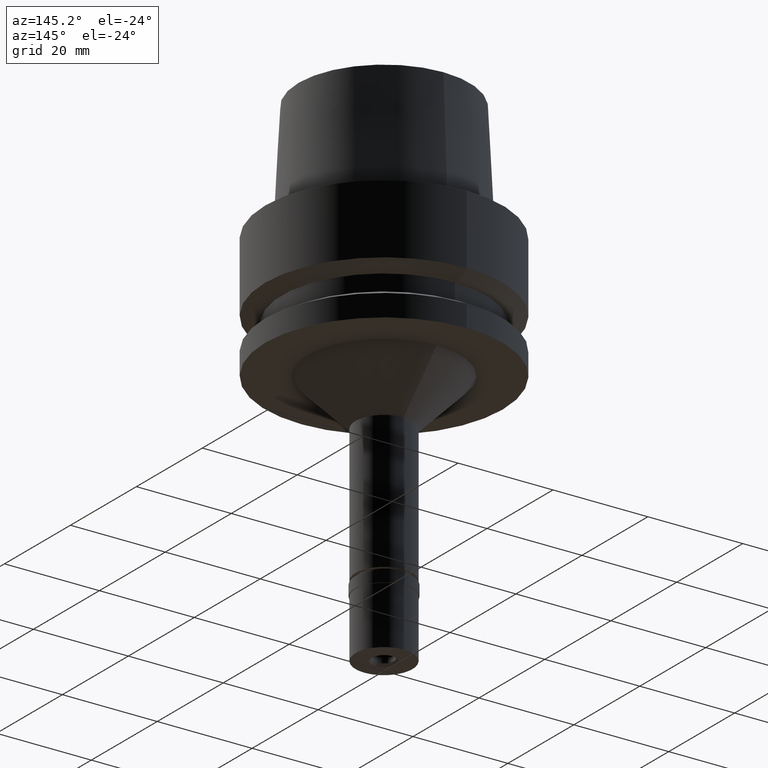
[diagram: clean part render]
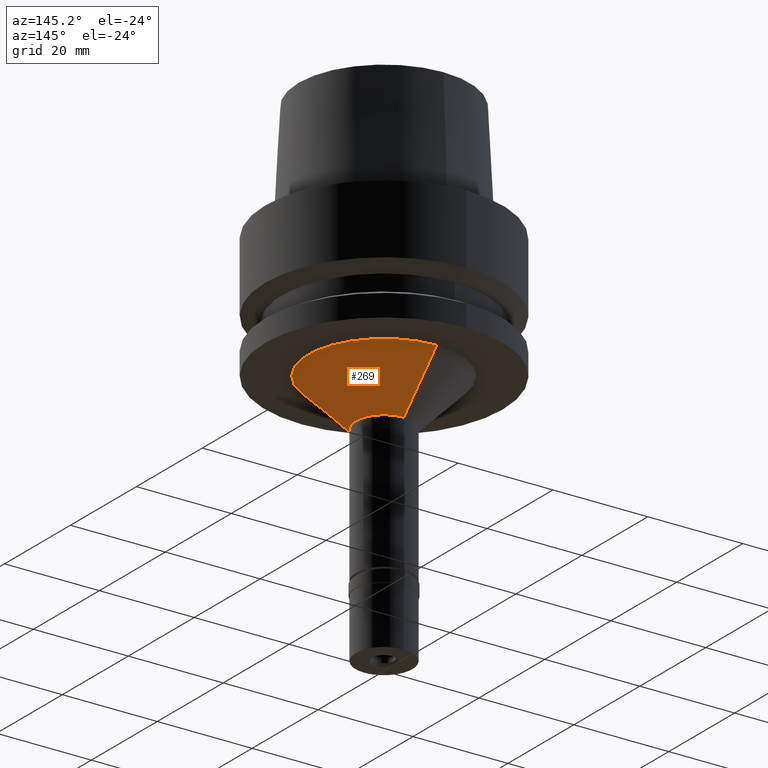
[diagram: same view with one face highlighted and labeled with its STEP entity id]
A machine part, auxiliary view. The second image highlights one B-rep face of the part: STEP entity #269.
In plain terms, the highlighted conical surface has half-angle 45 deg.
Its self-contained STEP definition (entity closure, byte-faithful):
#123 = VECTOR ( 'NONE', #468, 1000.000000000000114 ) ;
#269 = ADVANCED_FACE ( 'NONE', ( #2440 ), #473, .T. ) ;
#344 = CARTESIAN_POINT ( 'NONE',  ( 0.0000000000000000000, -6.000000000000000000, -36.00000000000000000 ) ) ;
#396 = EDGE_CURVE ( 'NONE', #1270, #2528, #1834, .T. ) ;
#468 = DIRECTION ( 'NONE',  ( 0.0000000000000000000, -0.7071067811865474617, -0.7071067811865474617 ) ) ;
#473 = CONICAL_SURFACE ( 'NONE', #1707, 11.00000000000000000, 0.7853981633972997312 ) ;
#707 = EDGE_CURVE ( 'NONE', #1529, #1270, #2353, .T. ) ;
#1010 = CIRCLE ( 'NONE', #1536, 16.00000000000000000 ) ;
#1021 = VECTOR ( 'NONE', #2210, 1000.000000000000114 ) ;
#1043 = CARTESIAN_POINT ( 'NONE',  ( 0.0000000000000000000, -16.00000000000000000, -26.00000000000000000 ) ) ;
#1065 = VERTEX_POINT ( 'NONE', #1043 ) ;
#1099 = CARTESIAN_POINT ( 'NONE',  ( 0.0000000000000000000, 16.00000000000000000, -26.00000000000000000 ) ) ;
#1146 = DIRECTION ( 'NONE',  ( 0.0000000000000000000, 1.000000000000000000, 0.0000000000000000000 ) ) ;
#1173 = EDGE_CURVE ( 'NONE', #1529, #1065, #1010, .T. ) ;
#1270 = VERTEX_POINT ( 'NONE', #1494 ) ;
#1380 = DIRECTION ( 'NONE',  ( 0.0000000000000000000, 0.0000000000000000000, -1.000000000000000000 ) ) ;
#1382 = EDGE_LOOP ( 'NONE', ( #1566, #2175, #2243, #2356 ) ) ;
#1383 = CARTESIAN_POINT ( 'NONE',  ( 0.0000000000000000000, -16.00000000000000000, -26.00000000000000000 ) ) ;
#1392 = DIRECTION ( 'NONE',  ( 0.0000000000000000000, 1.000000000000000000, 0.0000000000000000000 ) ) ;
#1493 = AXIS2_PLACEMENT_3D ( 'NONE', #2533, #2499, #2511 ) ;
#1494 = CARTESIAN_POINT ( 'NONE',  ( 0.0000000000000000000, 6.000000000000000000, -36.00000000000000000 ) ) ;
#1529 = VERTEX_POINT ( 'NONE', #2008 ) ;
#1536 = AXIS2_PLACEMENT_3D ( 'NONE', #2609, #1380, #1146 ) ;
#1566 = ORIENTED_EDGE ( 'NONE', *, *, #1173, .T. ) ;
#1707 = AXIS2_PLACEMENT_3D ( 'NONE', #2637, #2047, #1392 ) ;
#1834 = CIRCLE ( 'NONE', #1493, 6.000000000000000000 ) ;
#2008 = CARTESIAN_POINT ( 'NONE',  ( 0.0000000000000000000, 16.00000000000000000, -26.00000000000000000 ) ) ;
#2047 = DIRECTION ( 'NONE',  ( 0.0000000000000000000, 0.0000000000000000000, 1.000000000000000000 ) ) ;
#2175 = ORIENTED_EDGE ( 'NONE', *, *, #2626, .T. ) ;
#2210 = DIRECTION ( 'NONE',  ( 0.0000000000000000000, 0.7071067811865474617, -0.7071067811865474617 ) ) ;
#2243 = ORIENTED_EDGE ( 'NONE', *, *, #396, .F. ) ;
#2353 = LINE ( 'NONE', #1099, #123 ) ;
#2356 = ORIENTED_EDGE ( 'NONE', *, *, #707, .F. ) ;
#2440 = FACE_OUTER_BOUND ( 'NONE', #1382, .T. ) ;
#2499 = DIRECTION ( 'NONE',  ( 0.0000000000000000000, 0.0000000000000000000, -1.000000000000000000 ) ) ;
#2511 = DIRECTION ( 'NONE',  ( 0.0000000000000000000, 1.000000000000000000, 0.0000000000000000000 ) ) ;
#2528 = VERTEX_POINT ( 'NONE', #344 ) ;
#2533 = CARTESIAN_POINT ( 'NONE',  ( 0.0000000000000000000, 0.0000000000000000000, -36.00000000000000000 ) ) ;
#2609 = CARTESIAN_POINT ( 'NONE',  ( 0.0000000000000000000, 0.0000000000000000000, -26.00000000000000000 ) ) ;
#2613 = LINE ( 'NONE', #1383, #1021 ) ;
#2626 = EDGE_CURVE ( 'NONE', #1065, #2528, #2613, .T. ) ;
#2637 = CARTESIAN_POINT ( 'NONE',  ( 0.0000000000000000000, 0.0000000000000000000, -31.00000000000000000 ) ) ;